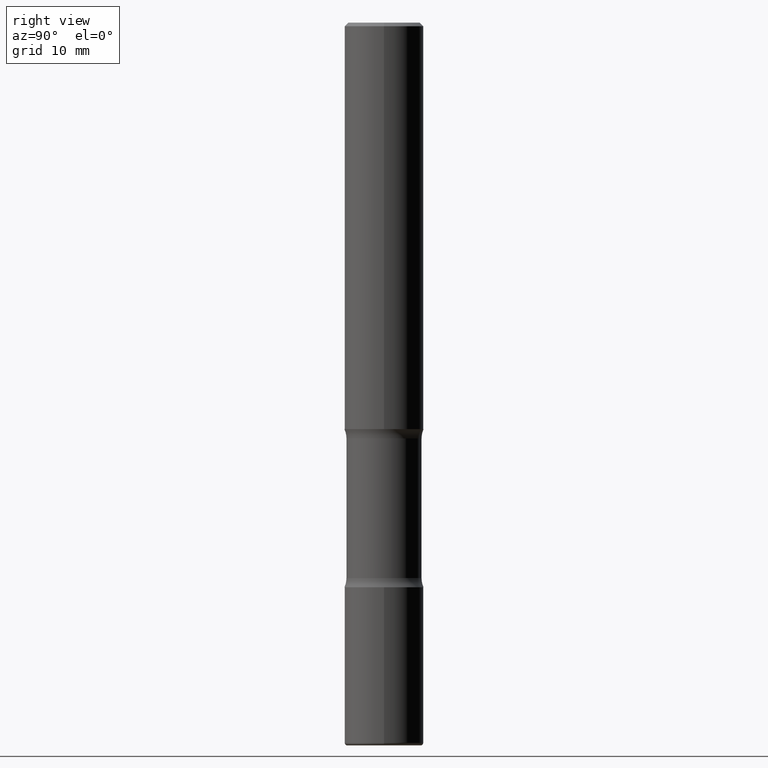
[diagram: clean part render]
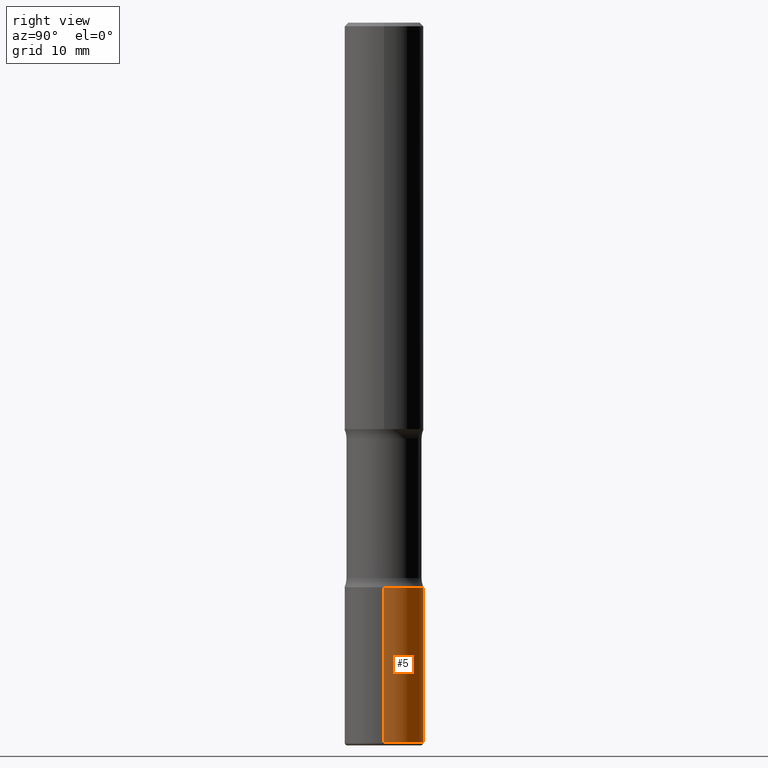
[diagram: same view with one face highlighted and labeled with its STEP entity id]
A machine part, right view. The second image highlights one B-rep face of the part: STEP entity #5.
In plain terms, the highlighted cylindrical surface (partial cylindrical patch) has radius 5.5563 mm, axis along (-0, 0, 1).
Its self-contained STEP definition (entity closure, byte-faithful):
#2 = CARTESIAN_POINT ( 'NONE',  ( -0.2187500000000003331, -1.235924090081471176E-14, -3.984999999999998987 ) ) ;
#5 = ADVANCED_FACE ( 'NONE', ( #502 ), #344, .T. ) ;
#16 = AXIS2_PLACEMENT_3D ( 'NONE', #381, #513, #42 ) ;
#19 = ORIENTED_EDGE ( 'NONE', *, *, #50, .F. ) ;
#42 = DIRECTION ( 'NONE',  ( 1.000000000000000000, -6.982962677686266711E-15, 4.876176775795935793E-29 ) ) ;
#50 = EDGE_CURVE ( 'NONE', #163, #408, #448, .T. ) ;
#51 = DIRECTION ( 'NONE',  ( -2.445468806185136877E-29, 3.491481338843145188E-15, 1.000000000000000000 ) ) ;
#61 = DIRECTION ( 'NONE',  ( -2.445468806185136597E-29, 3.491481338843145583E-15, 1.000000000000000000 ) ) ;
#67 = LINE ( 'NONE', #241, #384 ) ;
#82 = CARTESIAN_POINT ( 'NONE',  ( 7.642090019328550744E-29, -1.091087918388482645E-14, -3.124999999999999112 ) ) ;
#105 = ORIENTED_EDGE ( 'NONE', *, *, #251, .T. ) ;
#163 = VERTEX_POINT ( 'NONE', #491 ) ;
#216 = DIRECTION ( 'NONE',  ( -2.445468806185136597E-29, 3.491481338843145583E-15, 1.000000000000000000 ) ) ;
#239 = CIRCLE ( 'NONE', #546, 0.2187500000000000833 ) ;
#241 = CARTESIAN_POINT ( 'NONE',  ( 0.2187500000000001665, -1.527523085743872026E-15, 1.066663669705361725E-29 ) ) ;
#250 = VECTOR ( 'NONE', #51, 39.37007874015748143 ) ;
#251 = EDGE_CURVE ( 'NONE', #270, #408, #474, .T. ) ;
#270 = VERTEX_POINT ( 'NONE', #2 ) ;
#291 = ORIENTED_EDGE ( 'NONE', *, *, #340, .T. ) ;
#293 = AXIS2_PLACEMENT_3D ( 'NONE', #82, #216, #511 ) ;
#304 = CARTESIAN_POINT ( 'NONE',  ( 0.2187500000000003331, -1.544107622103380570E-14, -3.984999999999998987 ) ) ;
#325 = DIRECTION ( 'NONE',  ( -2.445468806185136877E-29, 3.491481338843145188E-15, 1.000000000000000000 ) ) ;
#340 = EDGE_CURVE ( 'NONE', #458, #270, #239, .T. ) ;
#344 = CYLINDRICAL_SURFACE ( 'NONE', #16, 0.2187500000000001665 ) ;
#379 = EDGE_LOOP ( 'NONE', ( #291, #105, #19, #477 ) ) ;
#381 = CARTESIAN_POINT ( 'NONE',  ( 0.000000000000000000, 0.000000000000000000, 0.000000000000000000 ) ) ;
#383 = EDGE_CURVE ( 'NONE', #458, #163, #67, .T. ) ;
#384 = VECTOR ( 'NONE', #325, 39.37007874015748143 ) ;
#408 = VERTEX_POINT ( 'NONE', #488 ) ;
#442 = DIRECTION ( 'NONE',  ( 1.000000000000000000, -6.982962677686269077E-15, 0.000000000000000000 ) ) ;
#443 = CARTESIAN_POINT ( 'NONE',  ( -0.2187500000000001665, 1.554312234475220340E-15, -1.076017050993261463E-29 ) ) ;
#448 = CIRCLE ( 'NONE', #293, 0.2187500000000001943 ) ;
#458 = VERTEX_POINT ( 'NONE', #304 ) ;
#474 = LINE ( 'NONE', #443, #250 ) ;
#477 = ORIENTED_EDGE ( 'NONE', *, *, #383, .F. ) ;
#488 = CARTESIAN_POINT ( 'NONE',  ( -0.2187500000000001943, -1.085790392511215873E-14, -3.124999999999999112 ) ) ;
#491 = CARTESIAN_POINT ( 'NONE',  ( 0.2187500000000001943, -1.243840226962869808E-14, -3.124999999999999112 ) ) ;
#495 = CARTESIAN_POINT ( 'NONE',  ( 9.745193192647766827E-29, -1.391355313528993249E-14, -3.984999999999998987 ) ) ;
#502 = FACE_OUTER_BOUND ( 'NONE', #379, .T. ) ;
#511 = DIRECTION ( 'NONE',  ( 1.000000000000000000, -6.982962677686265922E-15, 0.000000000000000000 ) ) ;
#513 = DIRECTION ( 'NONE',  ( -2.445468806185136597E-29, 3.491481338843145583E-15, 1.000000000000000000 ) ) ;
#546 = AXIS2_PLACEMENT_3D ( 'NONE', #495, #61, #442 ) ;